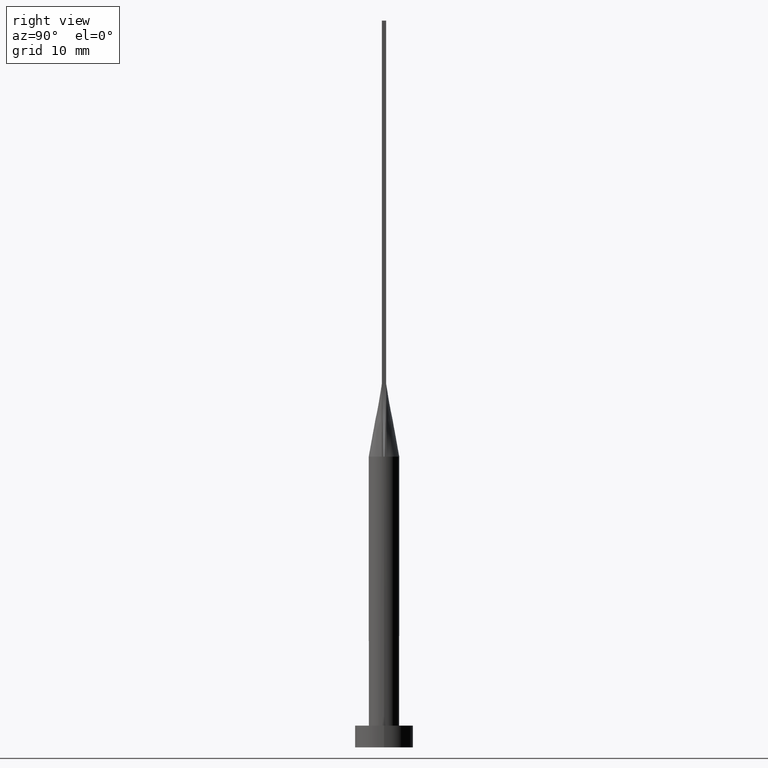
[diagram: clean part render]
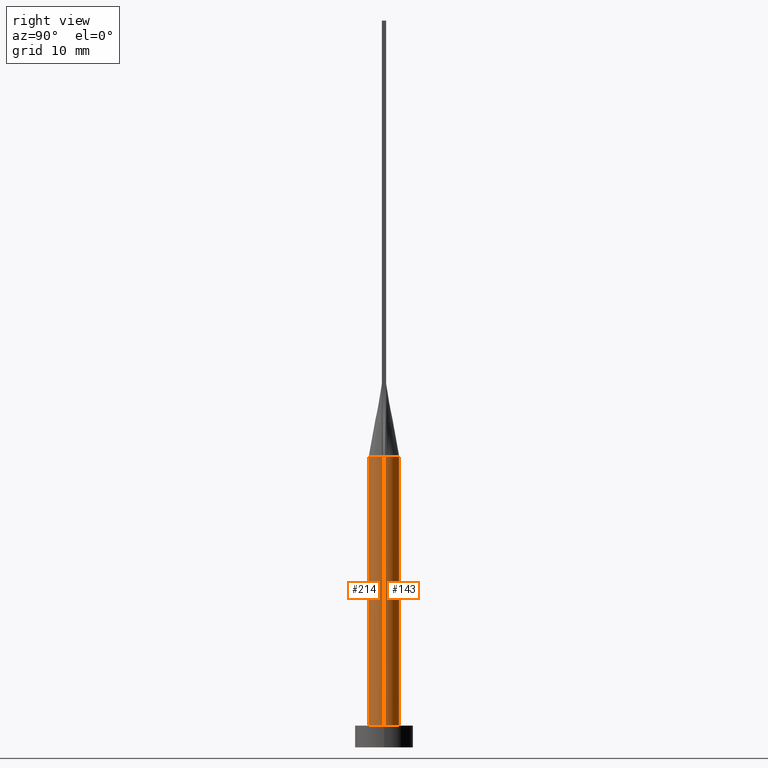
[diagram: same view with one multi-face feature highlighted, each face labeled with its STEP entity id]
A machine part, right view. The highlighted faces form ONE feature: a constant-radius fillet chain: 2 tangent blend faces with common blend radius 2.1 mm. The faces share edges in the B-rep.
Their STEP definitions:
[1] entity #214 (Cylinder):
#4 = AXIS2_PLACEMENT_3D ( 'NONE', #77, #259, #31 ) ;
#14 = CARTESIAN_POINT ( 'NONE',  ( -2.099921383865792635, -5.254633567926592411E-16, 40.00000000000000000 ) ) ;
#19 = DIRECTION ( 'NONE',  ( 1.000000000000000000, 0.000000000000000000, 0.000000000000000000 ) ) ;
#20 = ORIENTED_EDGE ( 'NONE', *, *, #207, .F. ) ;
#23 = AXIS2_PLACEMENT_3D ( 'NONE', #112, #201, #422 ) ;
#27 = DIRECTION ( 'NONE',  ( 1.000000000000000000, -7.993605777301127091E-15, 0.000000000000000000 ) ) ;
#31 = DIRECTION ( 'NONE',  ( -1.000000000000000000, 0.000000000000000000, 0.000000000000000000 ) ) ;
#42 = DIRECTION ( 'NONE',  ( -0.000000000000000000, -0.000000000000000000, -1.000000000000000000 ) ) ;
#44 = EDGE_CURVE ( 'NONE', #86, #315, #490, .T. ) ;
#46 = VERTEX_POINT ( 'NONE', #58 ) ;
#47 = CIRCLE ( 'NONE', #305, 2.100000000000000089 ) ;
#54 = VECTOR ( 'NONE', #526, 1000.000000000000000 ) ;
#58 = CARTESIAN_POINT ( 'NONE',  ( 2.099921383865792635, 5.174786140116233847E-16, 40.00000000000000000 ) ) ;
#60 = VERTEX_POINT ( 'NONE', #411 ) ;
#61 = CARTESIAN_POINT ( 'NONE',  ( 2.074492141291045755, -0.3275508996892426139, 40.00000000000000000 ) ) ;
#74 = AXIS2_PLACEMENT_3D ( 'NONE', #556, #371, #145 ) ;
#77 = CARTESIAN_POINT ( 'NONE',  ( 0.000000000000000000, 0.000000000000000000, 40.00000000000000000 ) ) ;
#84 = LINE ( 'NONE', #178, #314 ) ;
#86 = VERTEX_POINT ( 'NONE', #14 ) ;
#112 = CARTESIAN_POINT ( 'NONE',  ( 0.000000000000000000, 0.000000000000000000, 3.000000000000000000 ) ) ;
#140 = CARTESIAN_POINT ( 'NONE',  ( -2.100000000000000089, 0.000000000000000000, 3.000000000000000000 ) ) ;
#145 = DIRECTION ( 'NONE',  ( 1.000000000000000000, 0.000000000000000000, 0.000000000000000000 ) ) ;
#167 = CARTESIAN_POINT ( 'NONE',  ( 0.000000000000000000, 0.000000000000000000, 40.00000000000000000 ) ) ;
#178 = CARTESIAN_POINT ( 'NONE',  ( 2.100000000000000089, 2.571758278209441957E-16, 40.00000000000000000 ) ) ;
#201 = DIRECTION ( 'NONE',  ( 0.000000000000000000, 0.000000000000000000, 1.000000000000000000 ) ) ;
#205 = EDGE_LOOP ( 'NONE', ( #469, #20, #247, #257, #442, #403 ) ) ;
#207 = EDGE_CURVE ( 'NONE', #566, #46, #47, .T. ) ;
#214 = ADVANCED_FACE ( 'NONE', ( #346 ), #438, .T. ) ;
#215 = CARTESIAN_POINT ( 'NONE',  ( 0.000000000000000000, 0.000000000000000000, 40.00000000000000000 ) ) ;
#227 = LINE ( 'NONE', #356, #54 ) ;
#228 = EDGE_CURVE ( 'NONE', #315, #566, #276, .T. ) ;
#247 = ORIENTED_EDGE ( 'NONE', *, *, #228, .F. ) ;
#257 = ORIENTED_EDGE ( 'NONE', *, *, #44, .F. ) ;
#259 = DIRECTION ( 'NONE',  ( -0.000000000000000000, -0.000000000000000000, -1.000000000000000000 ) ) ;
#270 = CARTESIAN_POINT ( 'NONE',  ( -2.074486960997361962, -0.3275502116714910095, 40.00000000000000000 ) ) ;
#276 = CIRCLE ( 'NONE', #337, 2.100000000000000089 ) ;
#283 = EDGE_CURVE ( 'NONE', #46, #60, #84, .T. ) ;
#299 = EDGE_CURVE ( 'NONE', #86, #416, #227, .T. ) ;
#305 = AXIS2_PLACEMENT_3D ( 'NONE', #167, #432, #27 ) ;
#314 = VECTOR ( 'NONE', #42, 1000.000000000000000 ) ;
#315 = VERTEX_POINT ( 'NONE', #270 ) ;
#337 = AXIS2_PLACEMENT_3D ( 'NONE', #215, #392, #19 ) ;
#346 = FACE_OUTER_BOUND ( 'NONE', #205, .T. ) ;
#356 = CARTESIAN_POINT ( 'NONE',  ( -2.100000000000000089, 0.000000000000000000, 40.00000000000000000 ) ) ;
#371 = DIRECTION ( 'NONE',  ( 0.000000000000000000, 0.000000000000000000, 1.000000000000000000 ) ) ;
#392 = DIRECTION ( 'NONE',  ( 0.000000000000000000, 0.000000000000000000, 1.000000000000000000 ) ) ;
#403 = ORIENTED_EDGE ( 'NONE', *, *, #551, .T. ) ;
#411 = CARTESIAN_POINT ( 'NONE',  ( 2.100000000000000089, 2.571758278209441957E-16, 3.000000000000000000 ) ) ;
#416 = VERTEX_POINT ( 'NONE', #140 ) ;
#422 = DIRECTION ( 'NONE',  ( 1.000000000000000000, 0.000000000000000000, 0.000000000000000000 ) ) ;
#432 = DIRECTION ( 'NONE',  ( 0.000000000000000000, 0.000000000000000000, 1.000000000000000000 ) ) ;
#438 = CYLINDRICAL_SURFACE ( 'NONE', #4, 2.100000000000000089 ) ;
#442 = ORIENTED_EDGE ( 'NONE', *, *, #299, .T. ) ;
#469 = ORIENTED_EDGE ( 'NONE', *, *, #283, .F. ) ;
#490 = CIRCLE ( 'NONE', #74, 2.100000000000000089 ) ;
#526 = DIRECTION ( 'NONE',  ( -0.000000000000000000, -0.000000000000000000, -1.000000000000000000 ) ) ;
#545 = CIRCLE ( 'NONE', #23, 2.100000000000000089 ) ;
#551 = EDGE_CURVE ( 'NONE', #416, #60, #545, .T. ) ;
#556 = CARTESIAN_POINT ( 'NONE',  ( 0.000000000000000000, 0.000000000000000000, 40.00000000000000000 ) ) ;
#566 = VERTEX_POINT ( 'NONE', #61 ) ;
[2] entity #143 (Cylinder):
#2 = AXIS2_PLACEMENT_3D ( 'NONE', #507, #248, #425 ) ;
#10 = CARTESIAN_POINT ( 'NONE',  ( 0.000000000000000000, 0.000000000000000000, 40.00000000000000000 ) ) ;
#14 = CARTESIAN_POINT ( 'NONE',  ( -2.099921383865792635, -5.254633567926592411E-16, 40.00000000000000000 ) ) ;
#37 = ORIENTED_EDGE ( 'NONE', *, *, #283, .T. ) ;
#40 = ORIENTED_EDGE ( 'NONE', *, *, #478, .F. ) ;
#42 = DIRECTION ( 'NONE',  ( -0.000000000000000000, -0.000000000000000000, -1.000000000000000000 ) ) ;
#43 = ORIENTED_EDGE ( 'NONE', *, *, #299, .F. ) ;
#46 = VERTEX_POINT ( 'NONE', #58 ) ;
#54 = VECTOR ( 'NONE', #526, 1000.000000000000000 ) ;
#55 = CARTESIAN_POINT ( 'NONE',  ( -1.692271541701912296, 1.268928319070362631, 40.00000000000000711 ) ) ;
#58 = CARTESIAN_POINT ( 'NONE',  ( 2.099921383865792635, 5.174786140116233847E-16, 40.00000000000000000 ) ) ;
#60 = VERTEX_POINT ( 'NONE', #411 ) ;
#69 = CARTESIAN_POINT ( 'NONE',  ( 0.000000000000000000, 0.000000000000000000, 40.00000000000000000 ) ) ;
#84 = LINE ( 'NONE', #178, #314 ) ;
#86 = VERTEX_POINT ( 'NONE', #14 ) ;
#99 = CARTESIAN_POINT ( 'NONE',  ( 0.2990728642939458615, 2.100000000000000089, 40.00000000000000000 ) ) ;
#101 = CARTESIAN_POINT ( 'NONE',  ( -1.342614810400549308, 1.634425746458370021, 40.00000000000000711 ) ) ;
#105 = EDGE_CURVE ( 'NONE', #296, #86, #323, .T. ) ;
#109 = CARTESIAN_POINT ( 'NONE',  ( -1.819451111325472326, 1.069832718648841885, 40.00000000000000711 ) ) ;
#110 = DIRECTION ( 'NONE',  ( 1.000000000000000000, 0.000000000000000000, 0.000000000000000000 ) ) ;
#122 = DIRECTION ( 'NONE',  ( -0.000000000000000000, -0.000000000000000000, -1.000000000000000000 ) ) ;
#134 = ORIENTED_EDGE ( 'NONE', *, *, #415, .F. ) ;
#140 = CARTESIAN_POINT ( 'NONE',  ( -2.100000000000000089, 0.000000000000000000, 3.000000000000000000 ) ) ;
#143 = ADVANCED_FACE ( 'NONE', ( #217 ), #252, .T. ) ;
#155 = CIRCLE ( 'NONE', #2, 2.100000000000000089 ) ;
#172 = DIRECTION ( 'NONE',  ( 0.000000000000000000, 0.000000000000000000, 1.000000000000000000 ) ) ;
#178 = CARTESIAN_POINT ( 'NONE',  ( 2.100000000000000089, 2.571758278209441957E-16, 40.00000000000000000 ) ) ;
#192 = CARTESIAN_POINT ( 'NONE',  ( -0.5970064165420507774, 2.033566071616263127, 40.00000000000000000 ) ) ;
#195 = DIRECTION ( 'NONE',  ( 0.000000000000000000, 0.000000000000000000, 1.000000000000000000 ) ) ;
#209 = EDGE_CURVE ( 'NONE', #60, #416, #443, .T. ) ;
#210 = CARTESIAN_POINT ( 'NONE',  ( 0.000000000000000000, 0.000000000000000000, 3.000000000000000000 ) ) ;
#217 = FACE_OUTER_BOUND ( 'NONE', #539, .T. ) ;
#221 = CARTESIAN_POINT ( 'NONE',  ( 2.074471112824316510, 0.3275477247839024275, 40.00000000000000000 ) ) ;
#227 = LINE ( 'NONE', #356, #54 ) ;
#232 = B_SPLINE_CURVE_WITH_KNOTS ( 'NONE', 3,
 ( #237, #375, #460, #547, #463, #454, #370, #290, #99, #410, #192, #322, #101, #55, #109, #407, #367, #540 ),
 .UNSPECIFIED., .F., .F.,
 ( 4, 2, 2, 2, 2, 2, 2, 2, 4 ),
 ( 0.000000000000000000, 0.1249999999999999722, 0.2500000000000000000, 0.3750000000000000000, 0.5000000000000000000, 0.6250000000000000000, 0.7500000000000000000, 0.8750000000000000000, 1.000000000000000000 ),
 .UNSPECIFIED. ) ;
#237 = CARTESIAN_POINT ( 'NONE',  ( 2.074471112824316510, 0.3275477247839024275, 40.00000000000000000 ) ) ;
#239 = ORIENTED_EDGE ( 'NONE', *, *, #209, .T. ) ;
#248 = DIRECTION ( 'NONE',  ( 0.000000000000000000, 0.000000000000000000, 1.000000000000000000 ) ) ;
#252 = CYLINDRICAL_SURFACE ( 'NONE', #521, 2.100000000000000089 ) ;
#265 = VERTEX_POINT ( 'NONE', #221 ) ;
#269 = AXIS2_PLACEMENT_3D ( 'NONE', #210, #172, #480 ) ;
#283 = EDGE_CURVE ( 'NONE', #46, #60, #84, .T. ) ;
#290 = CARTESIAN_POINT ( 'NONE',  ( 0.5970064165420508884, 2.033566071616262683, 40.00000000000000000 ) ) ;
#296 = VERTEX_POINT ( 'NONE', #445 ) ;
#299 = EDGE_CURVE ( 'NONE', #86, #416, #227, .T. ) ;
#314 = VECTOR ( 'NONE', #42, 1000.000000000000000 ) ;
#322 = CARTESIAN_POINT ( 'NONE',  ( -1.119115561862284558, 1.799829988698611327, 39.99999999999998579 ) ) ;
#323 = CIRCLE ( 'NONE', #366, 2.100000000000000089 ) ;
#351 = ORIENTED_EDGE ( 'NONE', *, *, #105, .F. ) ;
#356 = CARTESIAN_POINT ( 'NONE',  ( -2.100000000000000089, 0.000000000000000000, 40.00000000000000000 ) ) ;
#366 = AXIS2_PLACEMENT_3D ( 'NONE', #10, #195, #110 ) ;
#367 = CARTESIAN_POINT ( 'NONE',  ( -2.047342767731585855, 0.4982646475365663519, 40.00000000000000000 ) ) ;
#370 = CARTESIAN_POINT ( 'NONE',  ( 1.119115561862284558, 1.799829988698611105, 40.00000000000000000 ) ) ;
#375 = CARTESIAN_POINT ( 'NONE',  ( 2.047342767731584967, 0.4982646475365660188, 39.99999999999999289 ) ) ;
#407 = CARTESIAN_POINT ( 'NONE',  ( -1.996565546919327527, 0.6845950695482648785, 40.00000000000001421 ) ) ;
#410 = CARTESIAN_POINT ( 'NONE',  ( -0.2990728642939458615, 2.100000000000000089, 40.00000000000000000 ) ) ;
#411 = CARTESIAN_POINT ( 'NONE',  ( 2.100000000000000089, 2.571758278209441957E-16, 3.000000000000000000 ) ) ;
#415 = EDGE_CURVE ( 'NONE', #265, #296, #232, .T. ) ;
#416 = VERTEX_POINT ( 'NONE', #140 ) ;
#425 = DIRECTION ( 'NONE',  ( 1.000000000000000000, 0.000000000000000000, 0.000000000000000000 ) ) ;
#441 = DIRECTION ( 'NONE',  ( -1.000000000000000000, 0.000000000000000000, 0.000000000000000000 ) ) ;
#443 = CIRCLE ( 'NONE', #269, 2.100000000000000089 ) ;
#445 = CARTESIAN_POINT ( 'NONE',  ( -2.074476228699557279, 0.3275484103472254827, 40.00000000000000000 ) ) ;
#454 = CARTESIAN_POINT ( 'NONE',  ( 1.342614810400549086, 1.634425746458369799, 40.00000000000000711 ) ) ;
#460 = CARTESIAN_POINT ( 'NONE',  ( 1.996565546919327527, 0.6845950695482651005, 40.00000000000001421 ) ) ;
#463 = CARTESIAN_POINT ( 'NONE',  ( 1.692271541701912296, 1.268928319070362187, 39.99999999999999289 ) ) ;
#478 = EDGE_CURVE ( 'NONE', #46, #265, #155, .T. ) ;
#480 = DIRECTION ( 'NONE',  ( 1.000000000000000000, 0.000000000000000000, 0.000000000000000000 ) ) ;
#507 = CARTESIAN_POINT ( 'NONE',  ( 0.000000000000000000, 0.000000000000000000, 40.00000000000000000 ) ) ;
#521 = AXIS2_PLACEMENT_3D ( 'NONE', #69, #122, #441 ) ;
#526 = DIRECTION ( 'NONE',  ( -0.000000000000000000, -0.000000000000000000, -1.000000000000000000 ) ) ;
#539 = EDGE_LOOP ( 'NONE', ( #40, #37, #239, #43, #351, #134 ) ) ;
#540 = CARTESIAN_POINT ( 'NONE',  ( -2.074476228699557279, 0.3275484103472254827, 40.00000000000000000 ) ) ;
#547 = CARTESIAN_POINT ( 'NONE',  ( 1.819451111325471215, 1.069832718648841885, 39.99999999999998579 ) ) ;